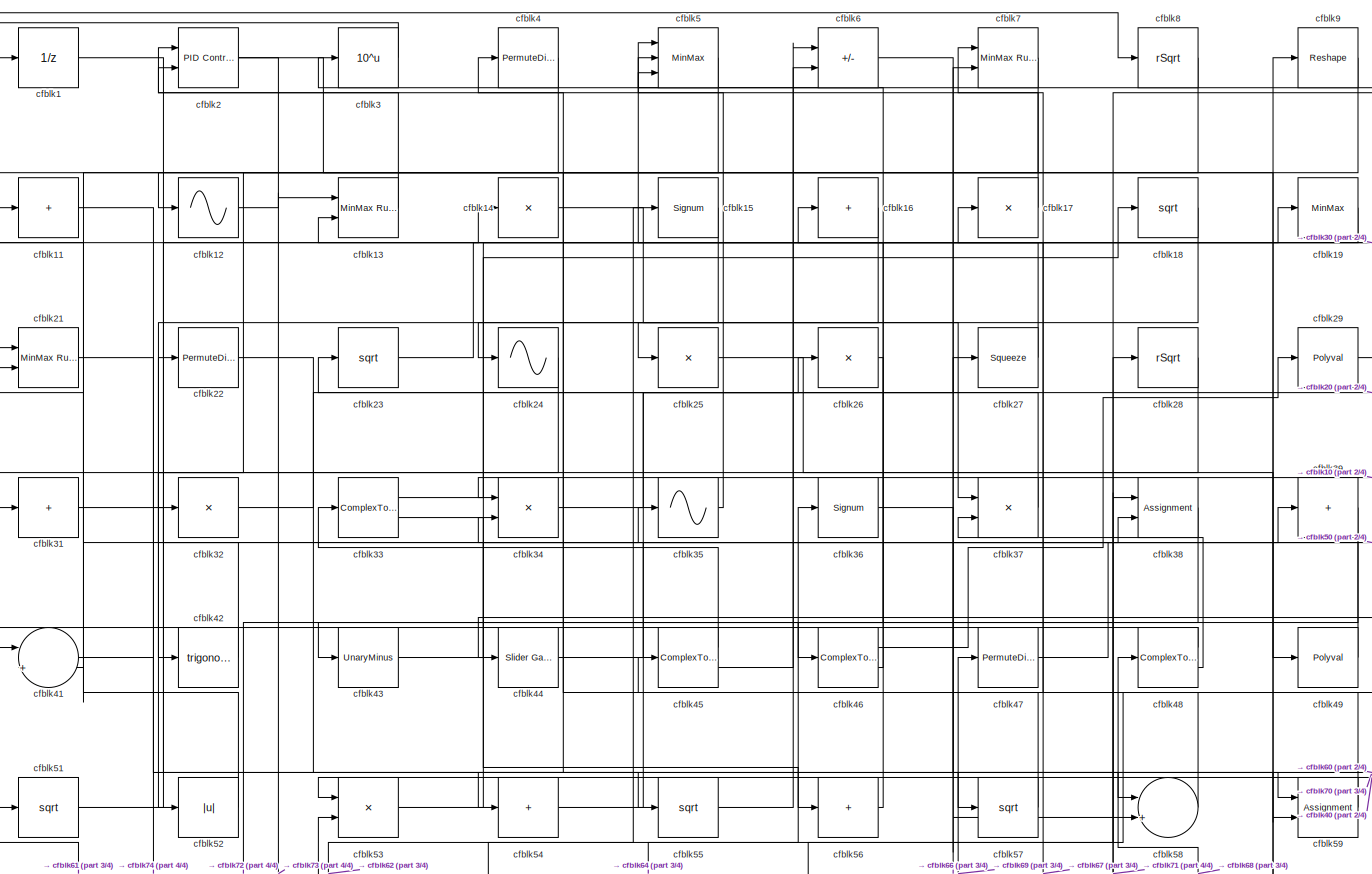
[diagram: root canvas - part 1/4, full width, middle band]
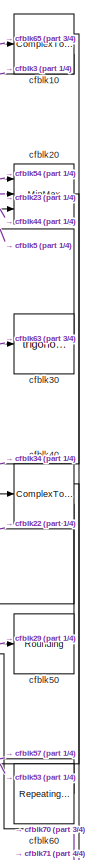
[diagram: root canvas - part 2/4, middle right region]
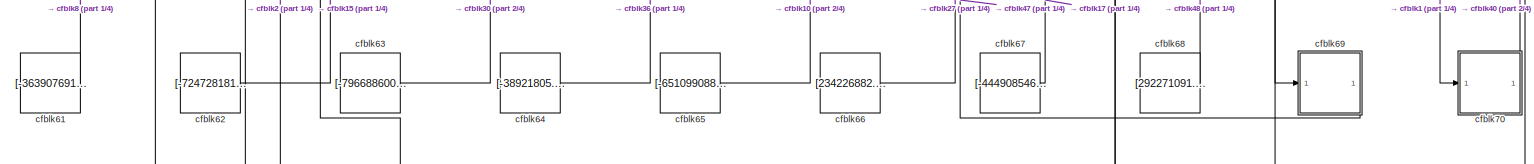
[diagram: root canvas - part 3/4, full width, bottom band]
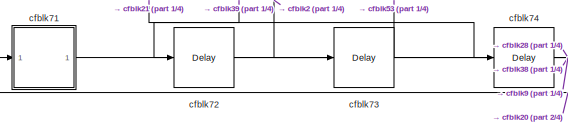
[diagram: root canvas - part 4/4, bottom left region]
MODEL slx_58164c71df3f
KIND model
CONFIG AbsTol = auto
CONFIG EnableMultiTasking = off
CONFIG FixedStep = auto
CONFIG MaxStep = auto
CONFIG MinStep = auto
CONFIG RelTol = 1e-3
CONFIG SampleTimeConstraint = Unconstrained
CONFIG SolverName = VariableStepAuto
CONFIG StartTime = 0.0
CONFIG StopTime = 10.0
BLOCK [UnitDelay] cfblk1
  HasFrameUpgradeWarning = on
BLOCK [ComplexToMagnitudeAngle] cfblk10
  Ports = [1, 2]
BLOCK [Sum] cfblk11
  IconShape = rectangular
  Inputs = +
  Ports = [1, 1]
BLOCK [Sin] cfblk12
  Ports = [1, 1]
  SampleTime = 0
  TimeSource = Use external signal
BLOCK [Reference] cfblk13  REF=simulink/Math
Operations/MinMax
Running
Resettable
  Ports = [2, 1]
  SourceBlock = simulink/Math\nOperations/MinMax\nRunning\nResettable
  SourceProductBaseCode = SL
  SourceType = MinMax Running Resettable
BLOCK [Product] cfblk14
  Inputs = *
  Ports = [1, 1]
BLOCK [Signum] cfblk15
BLOCK [Sum] cfblk16
  IconShape = rectangular
  Inputs = +
  Ports = [1, 1]
BLOCK [Product] cfblk17
  Inputs = *
  Ports = [1, 1]
BLOCK [Sqrt] cfblk18
BLOCK [MinMax] cfblk19
  Ports = [1, 1]
BLOCK [Reference] cfblk2  REF=slpidlib/PID Controller (2DOF)
  Ports = [2, 1]
  SourceBlock = slpidlib/PID Controller (2DOF)
  SourceProductBaseCode = SL
  SourceType = PID 2dof
BLOCK [MinMax] cfblk20
  Function = max
  Inputs = 3
  Ports = [3, 1]
BLOCK [Reference] cfblk21  REF=simulink/Math
Operations/MinMax
Running
Resettable
  Ports = [2, 1]
  SourceBlock = simulink/Math\nOperations/MinMax\nRunning\nResettable
  SourceProductBaseCode = SL
  SourceType = MinMax Running Resettable
BLOCK [PermuteDimensions] cfblk22
BLOCK [Sqrt] cfblk23
BLOCK [Sin] cfblk24
  Ports = [1, 1]
  SampleTime = 0
  TimeSource = Use external signal
BLOCK [Product] cfblk25
  Inputs = *
  Ports = [1, 1]
BLOCK [Product] cfblk26
  Inputs = *
  Ports = [1, 1]
BLOCK [Squeeze] cfblk27
BLOCK [Sqrt] cfblk28
  AlgorithmType = Newton-Raphson
  Operator = rSqrt
BLOCK [Polyval] cfblk29
  Coefs = [ +2.081618890e-019, -1.441693666e-014, +4.719686976e-010, -8.536869453e-006, +1.621573104e-001, -8.087801117e+001 ]
BLOCK [Math] cfblk3
  Operator = 10^u
  Ports = [1, 1]
  SignedPower = on
BLOCK [Trigonometry] cfblk30
  Ports = [1, 1]
BLOCK [Sum] cfblk31
  IconShape = rectangular
  Inputs = +
  Ports = [1, 1]
BLOCK [Product] cfblk32
  Inputs = *
  Ports = [1, 1]
BLOCK [ComplexToRealImag] cfblk33
  Ports = [1, 2]
BLOCK [Product] cfblk34
  Ports = [2, 1]
BLOCK [Sin] cfblk35
  Ports = [1, 1]
  SampleTime = 0
  TimeSource = Use external signal
BLOCK [Signum] cfblk36
BLOCK [Product] cfblk37
  Inputs = **
  Ports = [2, 1]
BLOCK [Assignment] cfblk38
  DiagnosticForDimensions = Warning
  IndexOptions = Index vector (dialog)
  Indices = 1
  OutputSizes = 1
  Ports = [2, 1]
BLOCK [Sum] cfblk39
  IconShape = rectangular
  Inputs = +
  Ports = [1, 1]
BLOCK [PermuteDimensions] cfblk4
BLOCK [ComplexToRealImag] cfblk40
  Ports = [1, 2]
BLOCK [Sum] cfblk41
  Inputs = |++
  Ports = [2, 1]
BLOCK [Trigonometry] cfblk42
  Ports = [1, 1]
BLOCK [UnaryMinus] cfblk43
BLOCK [Reference] cfblk44  REF=simulink/Math
Operations/Slider
Gain
  Ports = [1, 1]
  SourceBlock = simulink/Math\nOperations/Slider\nGain
  SourceProductBaseCode = SL
  SourceType = Slider Gain
BLOCK [ComplexToMagnitudeAngle] cfblk45
  Ports = [1, 2]
BLOCK [ComplexToMagnitudeAngle] cfblk46
  Ports = [1, 2]
BLOCK [PermuteDimensions] cfblk47
BLOCK [ComplexToRealImag] cfblk48
  Ports = [1, 2]
BLOCK [Polyval] cfblk49
  Coefs = [ +2.081618890e-019, -1.441693666e-014, +4.719686976e-010, -8.536869453e-006, +1.621573104e-001, -8.087801117e+001 ]
BLOCK [MinMax] cfblk5
  Function = max
  Inputs = 3
  Ports = [3, 1]
BLOCK [Rounding] cfblk50
BLOCK [Sqrt] cfblk51
BLOCK [Abs] cfblk52
  SaturateOnIntegerOverflow = off
BLOCK [Product] cfblk53
  Ports = [2, 1]
BLOCK [Sum] cfblk54
  IconShape = rectangular
  Inputs = +
  Ports = [1, 1]
BLOCK [Sqrt] cfblk55
BLOCK [Sum] cfblk56
  IconShape = rectangular
  Inputs = +
  Ports = [1, 1]
BLOCK [Sqrt] cfblk57
BLOCK [Sum] cfblk58
  Inputs = |++
  Ports = [2, 1]
BLOCK [Assignment] cfblk59
  DiagnosticForDimensions = Warning
  IndexOptions = Index vector (dialog)
  Indices = 1
  OutputSizes = 1
  Ports = [2, 1]
BLOCK [Sum] cfblk6
  IconShape = rectangular
  Inputs = +-
  Ports = [2, 1]
BLOCK [Reference] cfblk60  REF=simulink/Sources/Repeating
Sequence
  Ports = [0, 1]
  SourceBlock = simulink/Sources/Repeating\nSequence
  SourceProductBaseCode = SL
  SourceType = Repeating table
BLOCK [Constant] cfblk61
  SampleTime = 1
  Value = [-363907691.106315]
BLOCK [Constant] cfblk62
  SampleTime = 1
  Value = [-724728181.625819]
BLOCK [Constant] cfblk63
  SampleTime = 1
  Value = [-796688600.450708]
BLOCK [Constant] cfblk64
  SampleTime = 1
  Value = [-38921805.013750]
BLOCK [Constant] cfblk65
  SampleTime = 1
  Value = [-651099088.443645]
BLOCK [Constant] cfblk66
  SampleTime = 1
  Value = [234226882.083576]
BLOCK [Constant] cfblk67
  SampleTime = 1
  Value = [-444908546.428624]
BLOCK [Constant] cfblk68
  SampleTime = 1
  Value = [292271091.695543]
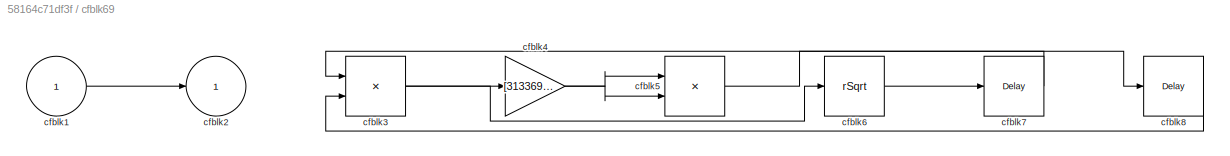
BLOCK [SubSystem] cfblk69
  Ports = [1, 1]
  RequestExecContextInheritance = off
BLOCK [Inport] cfblk69/cfblk1
BLOCK [Outport] cfblk69/cfblk2
  VectorParamsAs1DForOutWhenUnconnected = off
BLOCK [Product] cfblk69/cfblk3
  Ports = [2, 1]
BLOCK [Gain] cfblk69/cfblk4
  Gain = [313369218.166384]
BLOCK [Product] cfblk69/cfblk5
  Inputs = **
  Ports = [2, 1]
BLOCK [Sqrt] cfblk69/cfblk6
  AlgorithmType = Newton-Raphson
  Operator = rSqrt
BLOCK [Delay] cfblk69/cfblk7
  InputPortMap = u0
  Ports = [1, 1]
  SampleTime = 1
BLOCK [Delay] cfblk69/cfblk8
  InputPortMap = u0
  Ports = [1, 1]
  SampleTime = 1
BLOCK [Reference] cfblk7  REF=simulink/Math
Operations/MinMax
Running
Resettable
  Ports = [2, 1]
  SourceBlock = simulink/Math\nOperations/MinMax\nRunning\nResettable
  SourceProductBaseCode = SL
  SourceType = MinMax Running Resettable
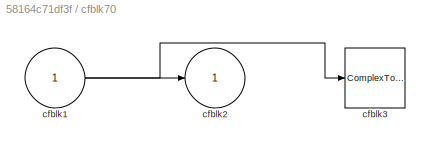
BLOCK [SubSystem] cfblk70
  Ports = [1, 1]
  RequestExecContextInheritance = off
BLOCK [Inport] cfblk70/cfblk1
BLOCK [Outport] cfblk70/cfblk2
  VectorParamsAs1DForOutWhenUnconnected = off
BLOCK [ComplexToMagnitudeAngle] cfblk70/cfblk3
  Ports = [1, 2]
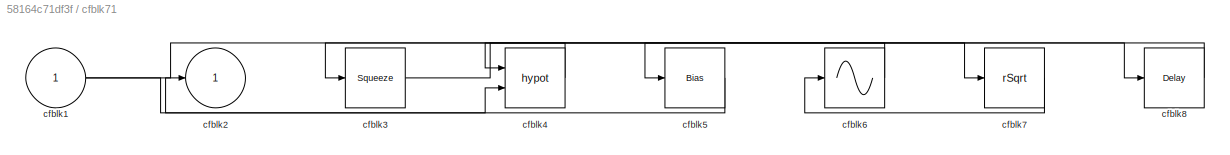
BLOCK [SubSystem] cfblk71
  Ports = [1, 1]
  RequestExecContextInheritance = off
BLOCK [Inport] cfblk71/cfblk1
BLOCK [Outport] cfblk71/cfblk2
  VectorParamsAs1DForOutWhenUnconnected = off
BLOCK [Squeeze] cfblk71/cfblk3
BLOCK [Math] cfblk71/cfblk4
  Operator = hypot
  Ports = [2, 1]
  SignedPower = on
BLOCK [Bias] cfblk71/cfblk5
  Bias = [82945987.860199]
  SaturateOnIntegerOverflow = off
BLOCK [Sin] cfblk71/cfblk6
  Ports = [1, 1]
  SampleTime = 0
  TimeSource = Use external signal
BLOCK [Sqrt] cfblk71/cfblk7
  AlgorithmType = Newton-Raphson
  Operator = rSqrt
BLOCK [Delay] cfblk71/cfblk8
  InputPortMap = u0
  Ports = [1, 1]
  SampleTime = 1
BLOCK [Delay] cfblk72
  InputPortMap = u0
  Ports = [1, 1]
  SampleTime = 1
BLOCK [Delay] cfblk73
  InputPortMap = u0
  Ports = [1, 1]
  SampleTime = 1
BLOCK [Delay] cfblk74
  InputPortMap = u0
  Ports = [1, 1]
  SampleTime = 1
BLOCK [Sqrt] cfblk8
  AlgorithmType = Newton-Raphson
  Operator = rSqrt
BLOCK [Reshape] cfblk9
  Ports = [1, 1]
LINE cfblk10:1 -> cfblk34:1
LINE cfblk10:2 -> cfblk3:1
LINE cfblk11:1 -> cfblk55:1
LINE cfblk12:1 -> cfblk13:1
LINE cfblk13:1 -> cfblk2:2
LINE cfblk14:1 -> cfblk37:1
LINE cfblk15:1 -> cfblk24:1
LINE cfblk16:1 -> cfblk52:1
LINE cfblk17:1 -> cfblk2:1
LINE cfblk18:1 -> cfblk25:1
LINE cfblk19:1 -> cfblk13:2
LINE cfblk1:1 -> cfblk70:1
LINE cfblk20:1 -> cfblk71:1
LINE cfblk21:1 -> cfblk74:1
LINE cfblk22:1 -> cfblk58:1
LINE cfblk23:1 -> cfblk20:2
LINE cfblk24:1 -> cfblk42:1
LINE cfblk25:1 -> cfblk49:1
LINE cfblk26:1 -> cfblk46:1
LINE cfblk27:1 -> cfblk1:1
LINE cfblk28:1 -> cfblk31:1
LINE cfblk29:1 -> cfblk50:1
NET cfblk2:1 -> cfblk69:1, cfblk73:1
LINE cfblk30:1 -> cfblk5:1
LINE cfblk31:1 -> cfblk38:2
LINE cfblk32:1 -> cfblk26:1
LINE cfblk33:1 -> cfblk18:1
LINE cfblk33:2 -> cfblk56:1
LINE cfblk34:1 -> cfblk7:2
LINE cfblk35:1 -> cfblk5:3
LINE cfblk36:1 -> cfblk59:2
LINE cfblk37:1 -> cfblk23:1
LINE cfblk38:1 -> cfblk43:1
LINE cfblk39:1 -> cfblk72:1
LINE cfblk3:1 -> cfblk51:1
LINE cfblk40:1 -> cfblk53:1
LINE cfblk40:2 -> cfblk44:1
LINE cfblk41:1 -> cfblk59:1
LINE cfblk42:1 -> cfblk21:2
LINE cfblk43:1 -> cfblk19:1
LINE cfblk44:1 -> cfblk20:3
LINE cfblk45:1 -> cfblk33:1
LINE cfblk45:2 -> cfblk6:2
LINE cfblk46:1 -> cfblk29:1
LINE cfblk46:2 -> cfblk5:2
LINE cfblk47:1 -> cfblk39:1
LINE cfblk48:1 -> cfblk41:1
LINE cfblk48:2 -> cfblk37:2
LINE cfblk49:1 -> cfblk4:1
LINE cfblk4:1 -> cfblk32:1
LINE cfblk50:1 -> cfblk22:1
LINE cfblk51:1 -> cfblk14:1
LINE cfblk52:1 -> cfblk11:1
LINE cfblk53:1 -> cfblk35:1
LINE cfblk54:1 -> cfblk20:1
LINE cfblk55:1 -> cfblk6:1
LINE cfblk56:1 -> cfblk16:1
LINE cfblk57:1 -> cfblk45:1
LINE cfblk58:1 -> cfblk34:2
LINE cfblk59:1 -> cfblk7:1
LINE cfblk5:1 -> cfblk54:1
LINE cfblk60:1 -> cfblk57:1
LINE cfblk61:1 -> cfblk8:1
LINE cfblk62:1 -> cfblk15:1
LINE cfblk63:1 -> cfblk30:1
LINE cfblk64:1 -> cfblk36:1
LINE cfblk65:1 -> cfblk10:1
LINE cfblk66:1 -> cfblk27:1
LINE cfblk67:1 -> cfblk17:1
LINE cfblk68:1 -> cfblk48:1
LINE cfblk69/cfblk1:1 -> cfblk69/cfblk2:1
NET cfblk69/cfblk3:1 -> cfblk69/cfblk4:1, cfblk69/cfblk6:1
NET cfblk69/cfblk4:1 -> cfblk69/cfblk5:1, cfblk69/cfblk5:2
LINE cfblk69/cfblk5:1 -> cfblk69/cfblk8:1
LINE cfblk69/cfblk6:1 -> cfblk69/cfblk7:1
LINE cfblk69/cfblk7:1 -> cfblk69/cfblk3:1
LINE cfblk69/cfblk8:1 -> cfblk69/cfblk3:2
LINE cfblk69:1 -> cfblk47:1
LINE cfblk6:1 -> cfblk58:2
NET cfblk70/cfblk1:1 -> cfblk70/cfblk2:1, cfblk70/cfblk3:1
LINE cfblk70:1 -> cfblk40:1
NET cfblk71/cfblk1:1 -> cfblk71/cfblk4:2, cfblk71/cfblk7:1
LINE cfblk71/cfblk3:1 -> cfblk71/cfblk8:1
LINE cfblk71/cfblk4:1 -> cfblk71/cfblk3:1
LINE cfblk71/cfblk5:1 -> cfblk71/cfblk2:1
LINE cfblk71/cfblk6:1 -> cfblk71/cfblk5:1
LINE cfblk71/cfblk7:1 -> cfblk71/cfblk6:1
LINE cfblk71/cfblk8:1 -> cfblk71/cfblk4:1
LINE cfblk71:1 -> cfblk28:1
LINE cfblk72:1 -> cfblk38:1
LINE cfblk73:1 -> cfblk53:2
LINE cfblk74:1 -> cfblk9:1
LINE cfblk7:1 -> cfblk12:1
LINE cfblk8:1 -> cfblk41:2
LINE cfblk9:1 -> cfblk21:1
note: NET lines group one-source signal fan-out (src -> all destinations, sorted); 1:1 wires keep LINE
